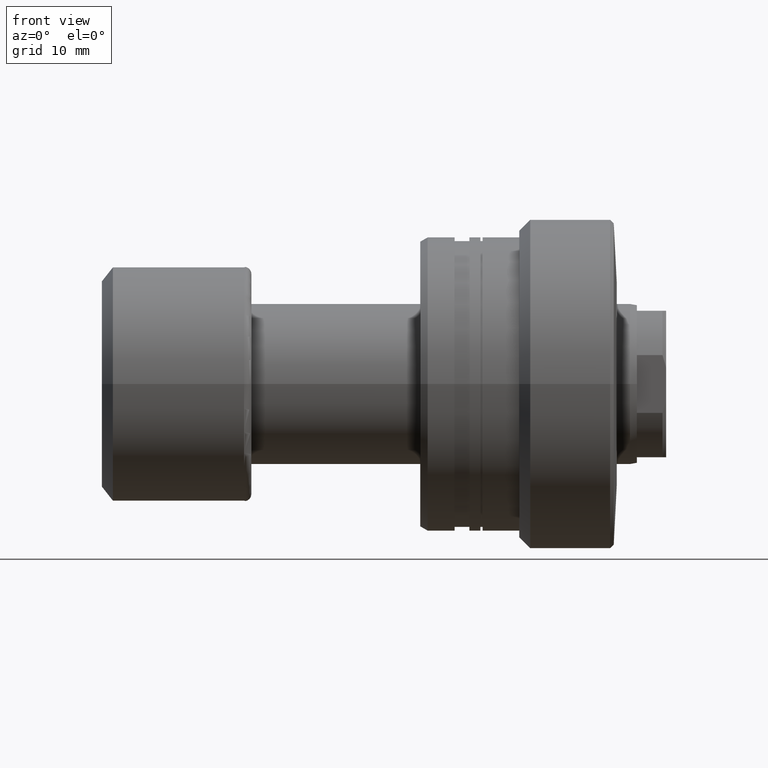
[diagram: clean part render]
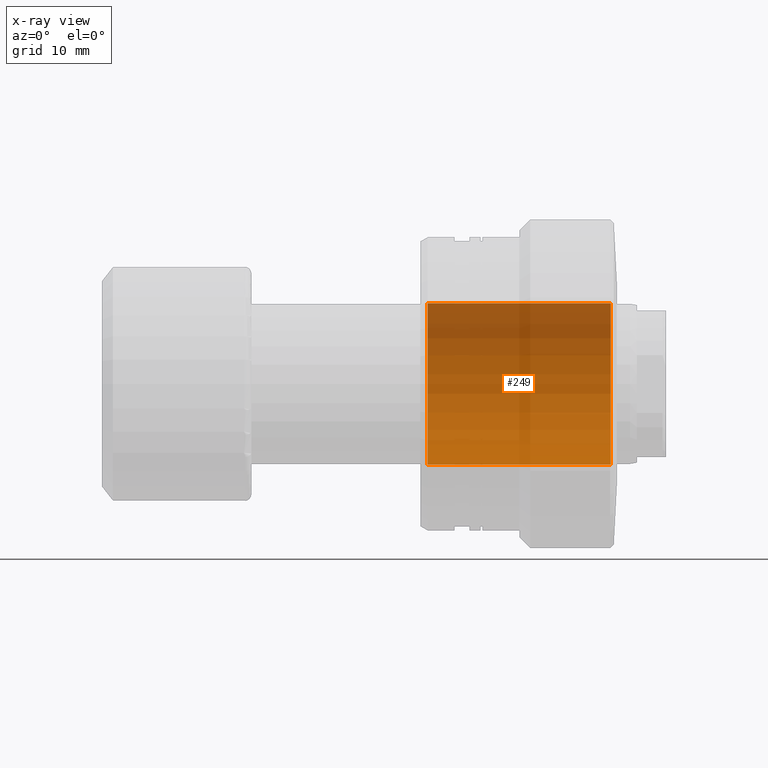
[diagram: x-ray — body ghosted, one internal face saturated and labeled with its STEP entity id]
A machine part, front view, then the same camera in x-ray: the body is ghosted and one INTERNAL B-rep face — a face not visible from any outside direction — is saturated and labeled: STEP entity #249.
In plain terms, the highlighted cylindrical surface (partial cylindrical patch) has radius 11 mm, axis along (1, 0, 0).
Its self-contained STEP definition (entity closure, byte-faithful):
#63 = ORIENTED_EDGE ( 'NONE', *, *, #341, .T. ) ;
#151 = CARTESIAN_POINT ( 'NONE',  ( -26.49999999999999645, 0.000000000000000000, 0.000000000000000000 ) ) ;
#234 = CYLINDRICAL_SURFACE ( 'NONE', #1676, 11.00000000000000000 ) ;
#249 = ADVANCED_FACE ( 'NONE', ( #1392 ), #234, .F. ) ;
#333 = EDGE_LOOP ( 'NONE', ( #710, #2338, #796, #63 ) ) ;
#341 = EDGE_CURVE ( 'NONE', #1984, #946, #1868, .T. ) ;
#461 = AXIS2_PLACEMENT_3D ( 'NONE', #990, #1743, #806 ) ;
#686 = EDGE_CURVE ( 'NONE', #1959, #946, #711, .T. ) ;
#710 = ORIENTED_EDGE ( 'NONE', *, *, #686, .F. ) ;
#711 = LINE ( 'NONE', #1461, #2199 ) ;
#734 = AXIS2_PLACEMENT_3D ( 'NONE', #151, #1823, #1643 ) ;
#796 = ORIENTED_EDGE ( 'NONE', *, *, #1501, .T. ) ;
#806 = DIRECTION ( 'NONE',  ( 0.000000000000000000, 0.000000000000000000, -1.000000000000000000 ) ) ;
#847 = CARTESIAN_POINT ( 'NONE',  ( -1.500000000000000000, 0.000000000000000000, -11.00000000000000000 ) ) ;
#875 = CARTESIAN_POINT ( 'NONE',  ( -26.49999999999999645, 1.347111479062088405E-15, 11.00000000000000000 ) ) ;
#903 = EDGE_CURVE ( 'NONE', #1959, #1529, #1989, .T. ) ;
#946 = VERTEX_POINT ( 'NONE', #1043 ) ;
#979 = DIRECTION ( 'NONE',  ( 0.000000000000000000, 0.000000000000000000, -1.000000000000000000 ) ) ;
#990 = CARTESIAN_POINT ( 'NONE',  ( -1.500000000000000000, 0.000000000000000000, 0.000000000000000000 ) ) ;
#1043 = CARTESIAN_POINT ( 'NONE',  ( -1.500000000000000000, 1.347111479062088405E-15, 11.00000000000000000 ) ) ;
#1085 = LINE ( 'NONE', #1649, #1722 ) ;
#1392 = FACE_OUTER_BOUND ( 'NONE', #333, .T. ) ;
#1461 = CARTESIAN_POINT ( 'NONE',  ( -58.61269837220807233, 1.347111479062088405E-15, 11.00000000000000000 ) ) ;
#1501 = EDGE_CURVE ( 'NONE', #1529, #1984, #1085, .T. ) ;
#1529 = VERTEX_POINT ( 'NONE', #2024 ) ;
#1643 = DIRECTION ( 'NONE',  ( 0.000000000000000000, 0.000000000000000000, 1.000000000000000000 ) ) ;
#1649 = CARTESIAN_POINT ( 'NONE',  ( -58.61269837220807233, 0.000000000000000000, -11.00000000000000000 ) ) ;
#1676 = AXIS2_PLACEMENT_3D ( 'NONE', #1723, #2132, #979 ) ;
#1722 = VECTOR ( 'NONE', #2402, 1000.000000000000000 ) ;
#1723 = CARTESIAN_POINT ( 'NONE',  ( -58.61269837220807233, 0.000000000000000000, 0.000000000000000000 ) ) ;
#1743 = DIRECTION ( 'NONE',  ( 1.000000000000000000, 0.000000000000000000, 0.000000000000000000 ) ) ;
#1823 = DIRECTION ( 'NONE',  ( -1.000000000000000000, -0.000000000000000000, -0.000000000000000000 ) ) ;
#1868 = CIRCLE ( 'NONE', #461, 11.00000000000000000 ) ;
#1959 = VERTEX_POINT ( 'NONE', #875 ) ;
#1984 = VERTEX_POINT ( 'NONE', #847 ) ;
#1989 = CIRCLE ( 'NONE', #734, 11.00000000000000000 ) ;
#2024 = CARTESIAN_POINT ( 'NONE',  ( -26.49999999999999645, 0.000000000000000000, -11.00000000000000000 ) ) ;
#2132 = DIRECTION ( 'NONE',  ( 1.000000000000000000, -0.000000000000000000, -0.000000000000000000 ) ) ;
#2199 = VECTOR ( 'NONE', #2228, 1000.000000000000000 ) ;
#2228 = DIRECTION ( 'NONE',  ( 1.000000000000000000, -0.000000000000000000, -0.000000000000000000 ) ) ;
#2338 = ORIENTED_EDGE ( 'NONE', *, *, #903, .T. ) ;
#2402 = DIRECTION ( 'NONE',  ( 1.000000000000000000, -0.000000000000000000, -0.000000000000000000 ) ) ;